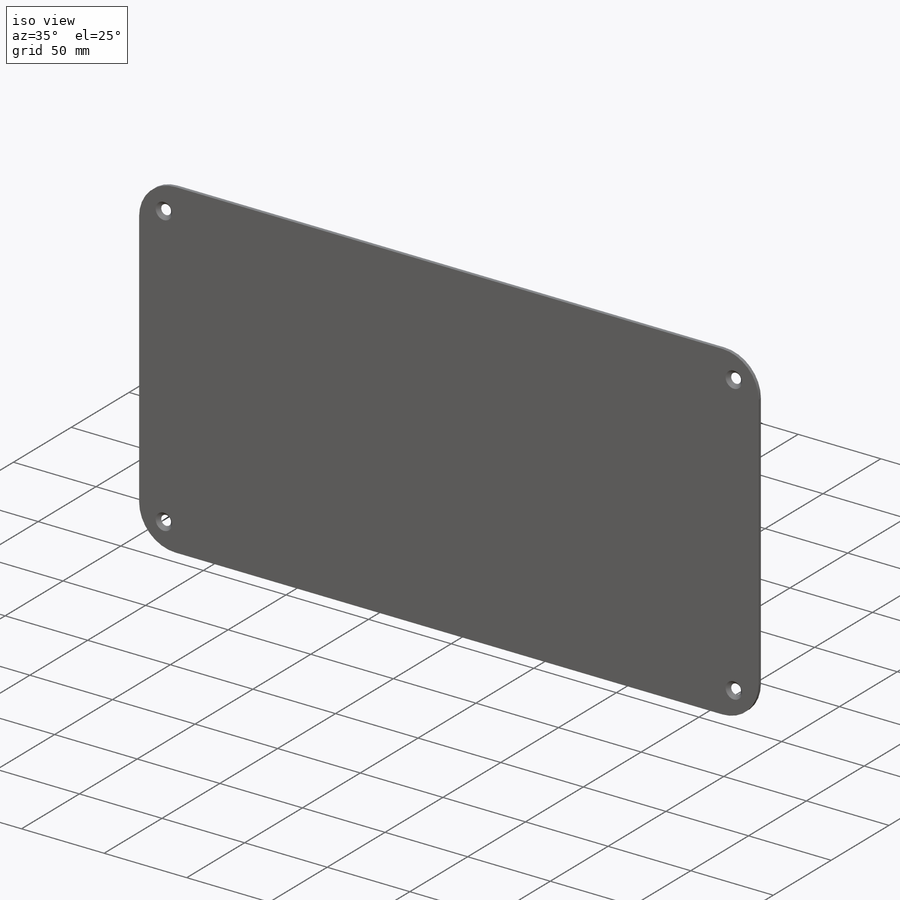
[diagram: iso view]
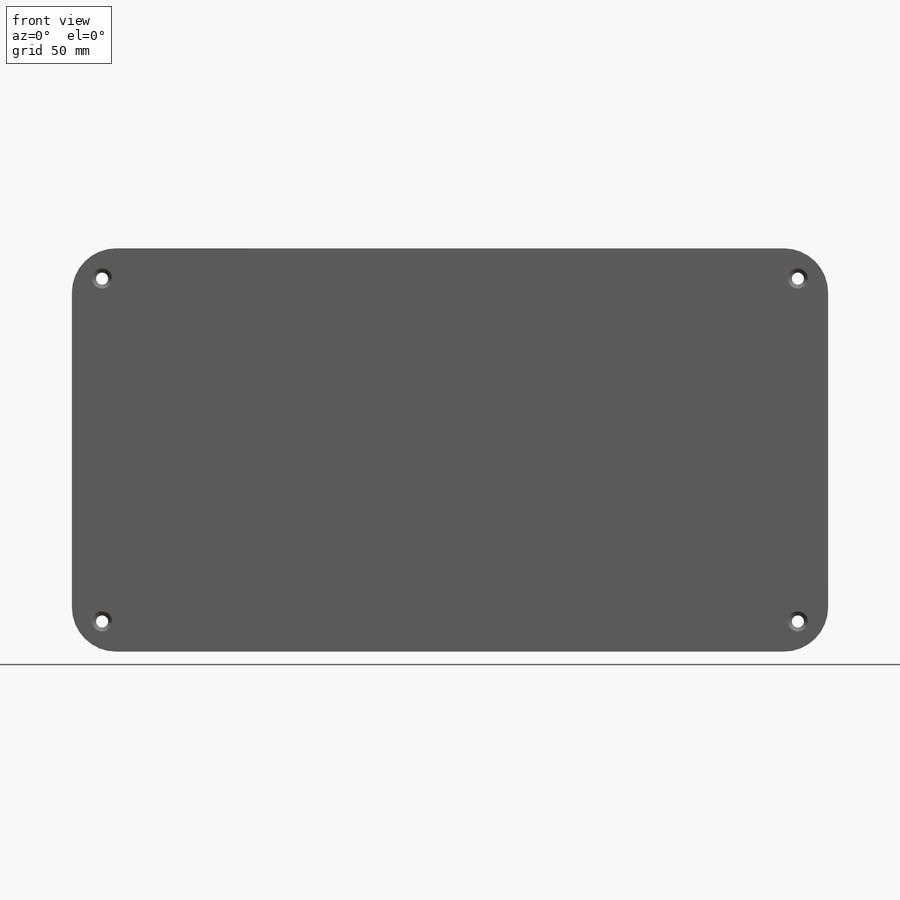
[diagram: front view]
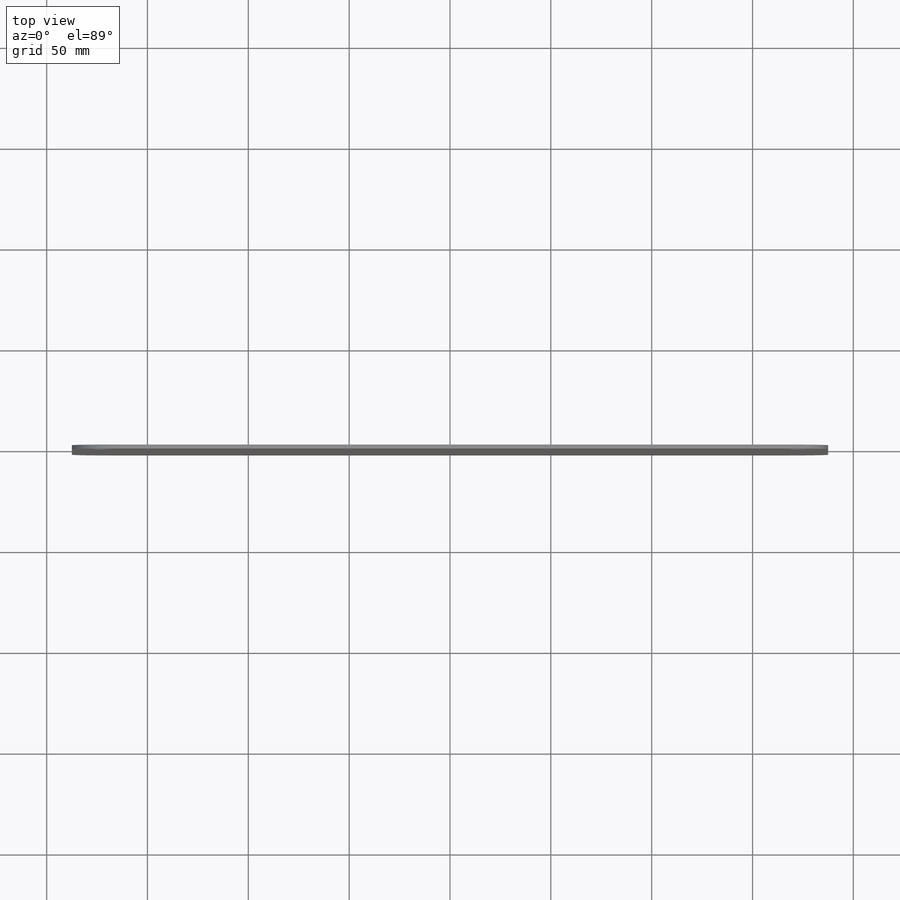
[diagram: top view]
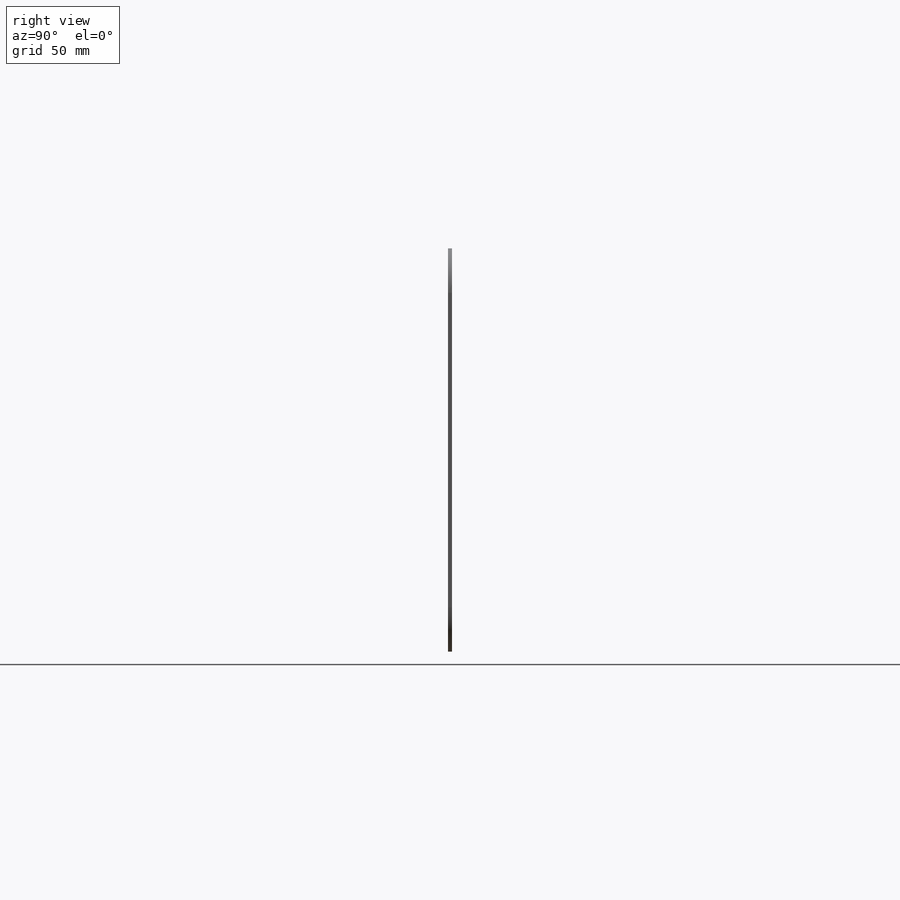
[diagram: right view]
SOLIDWORKS PART (.sldprt)
format: sldprt  version: not decoded by parser v0  size: 262,656 bytes
history: native  units: mm
features: sketch x6, sheet_metal_op x2, cut_extrude x2, material x1, hole x1 + 1 further entry (+12 scaffold rows collapsed)
feature tree (25):
  scaffold x12  (default folders/planes/origin — collapsed)
  material  "7079 Alloy"
  sketch  "Sketch1"  dims[D3=22.0mm D1=375.0mm D2=200.0mm]
  sheet_metal_op  "Sheet-Metal1"
  sheet_metal_op  "Base-Flange1"
  sketch  "Sketch8"  dims[c1.D1=3.5mm c1.D2=3.5mm c1.D4=3.5mm c1.D5=3.5mm c1.D3=25.0mm c2.D4=40.0mm c2.D5=53.0mm]
  cut_extrude  "Cut-Extrude11"  [1 undecoded]
  sketch  "Esboço7"  dims[c1.D1=3.0mm c1.D2=3.0mm c1.D3=3.0mm c1.D4=3.0mm c1.D5=3.0mm c1.D6=3.0mm c1.D7=3.0mm c1.D8=3.0mm c1.D9=3.0mm c1.D10=3.0mm c2.D1=~294.12132mm c3.D1=~32.046758deg c4.D1=~7.28329mm c4.D5=15.0mm c4.D6=15.0mm c4.D7=15.0mm c4.D8=10.0mm c4.D9=10.0mm c4.D10=10.0mm c5.D8=15.0mm]
  cut_extrude  "Corte-extrusão1"  [1 undecoded]
  hole  "Escareado para parafuso Allen sextavado escareado de M41"  Diameter=4.3mm Depth=2mm
  sketch  "3DSketch3"
  sketch  "Esboço9"  dims[hole-wizard template sketch: 54 standard entries collapsed; hole parameters kept: c17.Thru Hole Dia.=4.3mm c17.Thru Hole Depth=2.0mm c17.Near C'Sink Dia.=9.96mm c17.D4=~3.666174mm c17.Near C'Sink Angle=90.0deg]
  "Flat-Pattern1"
  sketch  "Bend-Lines1"
decode coverage: 5 of 11 modeling features carry decoded parameters; 1 rows unclassified (native names shown)
note: ~ marks probable driven/reference dimensions
note: 2 parameter values undecoded
note: suppression state not decoded; provenance and decode notes live in map.json
